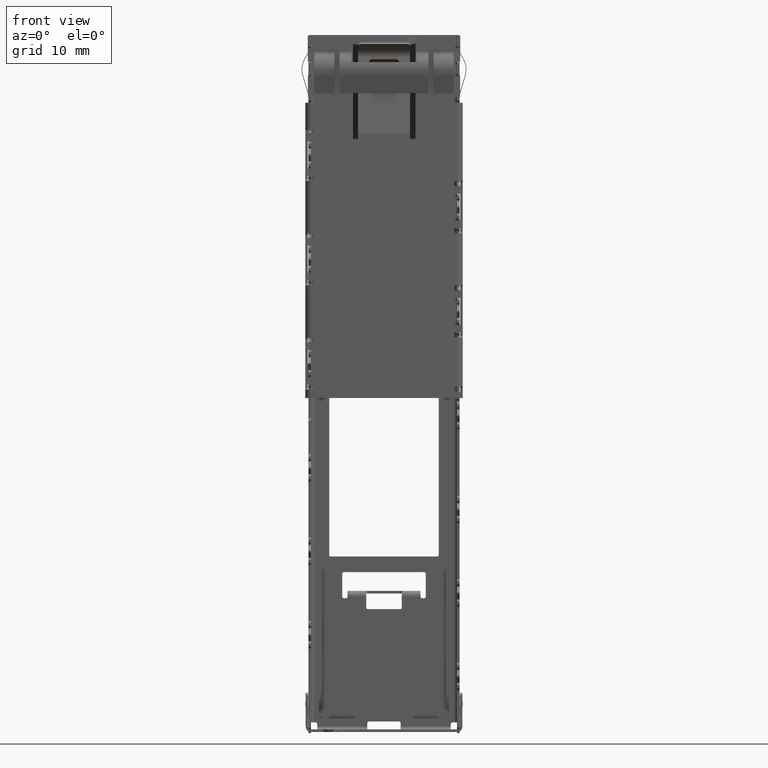
[diagram: clean part render]
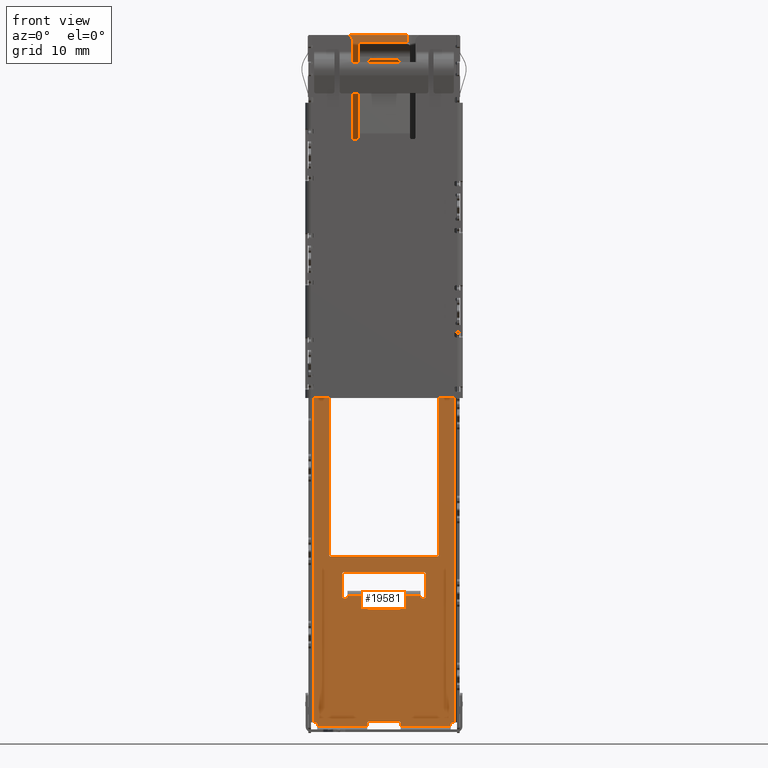
[diagram: same view with one face highlighted and labeled with its STEP entity id]
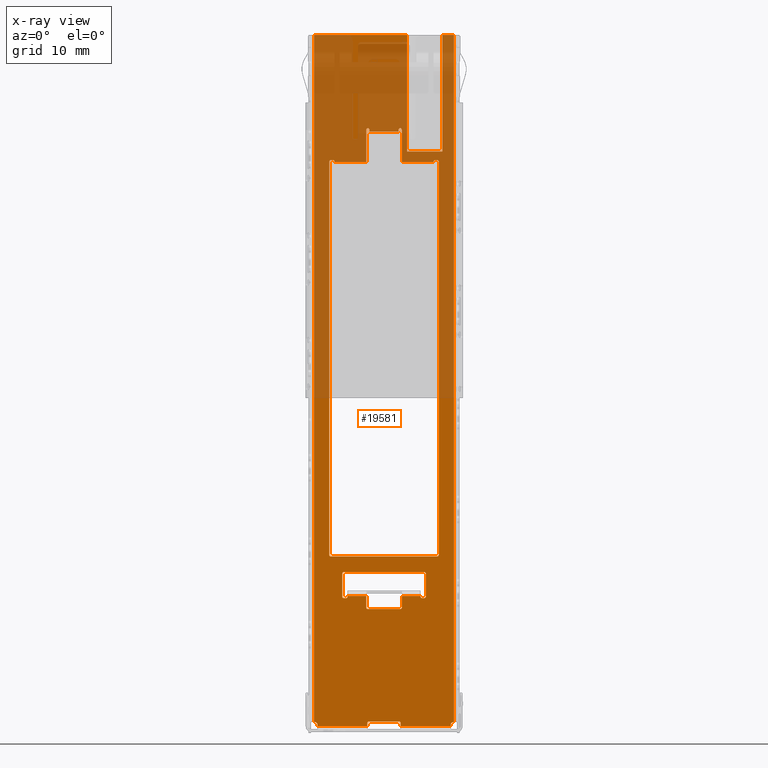
[diagram: x-ray of the same camera — body ghosted, the highlighted face saturated]
A machine part, front view. The second image highlights one B-rep face of the part: STEP entity #19581.
The next image is the same camera in x-ray: the body ghosted, the highlighted face saturated — about 41% of this face is hidden behind the body in this view.
In plain terms, the highlighted planar face has unit normal (0, -1, 0).
Its self-contained STEP definition (entity closure, byte-faithful):
#336 = EDGE_CURVE ( 'NONE', #14981, #46547, #28775, .T. ) ;
#384 = EDGE_CURVE ( 'NONE', #46547, #27460, #17562, .T. ) ;
#416 = CARTESIAN_POINT ( 'NONE',  ( -4.750000000000000000, 9.500000000000005329, -12.15000000000000036 ) ) ;
#475 = CARTESIAN_POINT ( 'NONE',  ( -6.400000000000000355, 9.500000000000008882, -66.10000000000000853 ) ) ;
#497 = ORIENTED_EDGE ( 'NONE', *, *, #40577, .T. ) ;
#895 = VECTOR ( 'NONE', #41113, 1000.000000000000000 ) ;
#902 = CARTESIAN_POINT ( 'NONE',  ( -4.899999999999999467, 9.500000000000005329, -12.00000000000000000 ) ) ;
#921 = LINE ( 'NONE', #48981, #28776 ) ;
#989 = CIRCLE ( 'NONE', #3352, 0.1499999999999973577 ) ;
#1230 = CARTESIAN_POINT ( 'NONE',  ( -1.699999999999994404, 9.500000000000005329, -55.05000000000003979 ) ) ;
#1267 = LINE ( 'NONE', #40125, #20743 ) ;
#1474 = ORIENTED_EDGE ( 'NONE', *, *, #33695, .T. ) ;
#1658 = DIRECTION ( 'NONE',  ( -1.000000000000000000, 0.0000000000000000000, 0.0000000000000000000 ) ) ;
#1727 = VECTOR ( 'NONE', #14269, 1000.000000000000000 ) ;
#1820 = CARTESIAN_POINT ( 'NONE',  ( -6.600000000000000533, 9.500000000000008882, -65.90000000000000568 ) ) ;
#1907 = ORIENTED_EDGE ( 'NONE', *, *, #39344, .T. ) ;
#1938 = CARTESIAN_POINT ( 'NONE',  ( -1.549999999999994493, 9.500000000000005329, -55.05000000000003979 ) ) ;
#2079 = AXIS2_PLACEMENT_3D ( 'NONE', #53365, #8422, #57669 ) ;
#2424 = DIRECTION ( 'NONE',  ( -0.0000000000000000000, -0.0000000000000000000, -1.000000000000000000 ) ) ;
#2463 = VECTOR ( 'NONE', #2424, 1000.000000000000000 ) ;
#2467 = EDGE_LOOP ( 'NONE', ( #18668, #18213, #9279, #40420, #30209, #16827, #21923, #26300, #35266, #16669, #39941, #49877, #42574, #12863, #28711, #12586, #53115, #27200, #26242, #32184, #13392, #497 ) ) ;
#2488 = CARTESIAN_POINT ( 'NONE',  ( 4.750000000000004441, 9.500000000000001776, -12.20000000000000995 ) ) ;
#2579 = DIRECTION ( 'NONE',  ( -0.0000000000000000000, -0.0000000000000000000, -1.000000000000000000 ) ) ;
#2649 = EDGE_CURVE ( 'NONE', #29528, #29014, #37397, .T. ) ;
#2892 = DIRECTION ( 'NONE',  ( -0.0000000000000000000, 0.0000000000000000000, 1.000000000000000000 ) ) ;
#3352 = AXIS2_PLACEMENT_3D ( 'NONE', #8911, #40944, #53686 ) ;
#3654 = CIRCLE ( 'NONE', #26468, 0.1499999999999973577 ) ;
#3735 = DIRECTION ( 'NONE',  ( 0.0000000000000000000, 0.0000000000000000000, -1.000000000000000000 ) ) ;
#3953 = VERTEX_POINT ( 'NONE', #12723 ) ;
#4001 = ORIENTED_EDGE ( 'NONE', *, *, #27285, .T. ) ;
#4174 = ORIENTED_EDGE ( 'NONE', *, *, #25448, .F. ) ;
#4273 = DIRECTION ( 'NONE',  ( -0.0000000000000000000, 1.000000000000000000, -0.0000000000000000000 ) ) ;
#4772 = CARTESIAN_POINT ( 'NONE',  ( 6.699999999999998401, 9.500000000000005329, 0.0000000000000000000 ) ) ;
#4861 = CARTESIAN_POINT ( 'NONE',  ( -4.000000000000000000, 9.500000000000005329, -54.00000000000000711 ) ) ;
#4947 = DIRECTION ( 'NONE',  ( -1.000000000000000000, -0.0000000000000000000, -0.0000000000000000000 ) ) ;
#4984 = AXIS2_PLACEMENT_3D ( 'NONE', #30666, #48077, #3735 ) ;
#5081 = LINE ( 'NONE', #46187, #895 ) ;
#5142 = ORIENTED_EDGE ( 'NONE', *, *, #6244, .T. ) ;
#5146 = EDGE_CURVE ( 'NONE', #50620, #54315, #5081, .T. ) ;
#5234 = CIRCLE ( 'NONE', #38874, 0.1500000000000008271 ) ;
#5256 = DIRECTION ( 'NONE',  ( 0.0000000000000000000, 0.0000000000000000000, -1.000000000000000000 ) ) ;
#5293 = VECTOR ( 'NONE', #8006, 1000.000000000000000 ) ;
#5379 = DIRECTION ( 'NONE',  ( -1.000000000000000000, -0.0000000000000000000, -0.0000000000000000000 ) ) ;
#5460 = VECTOR ( 'NONE', #22650, 1000.000000000000000 ) ;
#5900 = DIRECTION ( 'NONE',  ( -0.0000000000000000000, -0.0000000000000000000, -1.000000000000000000 ) ) ;
#5947 = VERTEX_POINT ( 'NONE', #12861 ) ;
#5977 = DIRECTION ( 'NONE',  ( 1.000000000000000000, 0.0000000000000000000, 0.0000000000000000000 ) ) ;
#6072 = LINE ( 'NONE', #46146, #40327 ) ;
#6116 = EDGE_CURVE ( 'NONE', #53242, #3953, #50347, .T. ) ;
#6244 = EDGE_CURVE ( 'NONE', #31123, #28936, #26584, .T. ) ;
#6270 = CARTESIAN_POINT ( 'NONE',  ( -5.100000000000000533, 9.500000000000005329, -49.85000000000000853 ) ) ;
#6296 = LINE ( 'NONE', #37719, #52422 ) ;
#6498 = DIRECTION ( 'NONE',  ( 0.0000000000000000000, 0.0000000000000000000, -1.000000000000000000 ) ) ;
#6860 = EDGE_CURVE ( 'NONE', #35699, #41408, #9026, .T. ) ;
#6953 = EDGE_CURVE ( 'NONE', #56946, #27808, #35609, .T. ) ;
#7187 = LINE ( 'NONE', #7524, #28794 ) ;
#7524 = CARTESIAN_POINT ( 'NONE',  ( -1.700000000000000178, 9.500000000000005329, -8.949999999999992184 ) ) ;
#7575 = VECTOR ( 'NONE', #5977, 1000.000000000000000 ) ;
#7651 = VECTOR ( 'NONE', #53524, 1000.000000000000000 ) ;
#7765 = CARTESIAN_POINT ( 'NONE',  ( 1.700000000000005285, 9.500000000000005329, -54.90000000000004121 ) ) ;
#7788 = CIRCLE ( 'NONE', #47431, 0.1500000000000008271 ) ;
#7807 = ORIENTED_EDGE ( 'NONE', *, *, #13797, .T. ) ;
#7925 = EDGE_CURVE ( 'NONE', #36254, #12260, #37605, .T. ) ;
#8006 = DIRECTION ( 'NONE',  ( 1.239088197126289831E-16, 0.0000000000000000000, -1.000000000000000000 ) ) ;
#8037 = CIRCLE ( 'NONE', #8529, 0.1499999999999973577 ) ;
#8097 = VERTEX_POINT ( 'NONE', #1820 ) ;
#8228 = DIRECTION ( 'NONE',  ( 0.0000000000000000000, 0.0000000000000000000, -1.000000000000000000 ) ) ;
#8303 = CIRCLE ( 'NONE', #16307, 0.2000000000000057288 ) ;
#8330 = DIRECTION ( 'NONE',  ( 1.000000000000000000, 0.0000000000000000000, 0.0000000000000000000 ) ) ;
#8341 = VERTEX_POINT ( 'NONE', #39842 ) ;
#8346 = CIRCLE ( 'NONE', #18438, 0.1500000000000008271 ) ;
#8354 = ORIENTED_EDGE ( 'NONE', *, *, #20650, .F. ) ;
#8422 = DIRECTION ( 'NONE',  ( -0.0000000000000000000, 1.000000000000000000, -0.0000000000000000000 ) ) ;
#8529 = AXIS2_PLACEMENT_3D ( 'NONE', #49766, #45089, #5256 ) ;
#8911 = CARTESIAN_POINT ( 'NONE',  ( -3.850000000000000089, 9.500000000000005329, -51.64999999999999858 ) ) ;
#9026 = LINE ( 'NONE', #22199, #7651 ) ;
#9150 = VERTEX_POINT ( 'NONE', #54825 ) ;
#9251 = ORIENTED_EDGE ( 'NONE', *, *, #30560, .T. ) ;
#9261 = CARTESIAN_POINT ( 'NONE',  ( 5.250000000000004441, 9.500000000000005329, -12.15000000000000036 ) ) ;
#9262 = DIRECTION ( 'NONE',  ( 0.0000000000000000000, 0.0000000000000000000, -1.000000000000000000 ) ) ;
#9279 = ORIENTED_EDGE ( 'NONE', *, *, #29791, .F. ) ;
#9532 = CIRCLE ( 'NONE', #50320, 0.2000000000000057288 ) ;
#9764 = ORIENTED_EDGE ( 'NONE', *, *, #36891, .T. ) ;
#9906 = CARTESIAN_POINT ( 'NONE',  ( -3.500000000000000000, 9.500000000000005329, -53.85000000000000853 ) ) ;
#10020 = CIRCLE ( 'NONE', #37768, 0.1499999999999973577 ) ;
#10038 = DIRECTION ( 'NONE',  ( 1.000000000000000000, 0.0000000000000000000, 0.0000000000000000000 ) ) ;
#10354 = DIRECTION ( 'NONE',  ( 0.0000000000000000000, 0.0000000000000000000, 1.000000000000000000 ) ) ;
#10416 = CARTESIAN_POINT ( 'NONE',  ( 1.450000000000000178, 9.500000000000008882, -65.82500000000001705 ) ) ;
#10487 = VERTEX_POINT ( 'NONE', #35536 ) ;
#10723 = DIRECTION ( 'NONE',  ( 0.0000000000000000000, 0.0000000000000000000, -1.000000000000000000 ) ) ;
#11069 = ORIENTED_EDGE ( 'NONE', *, *, #57177, .T. ) ;
#11134 = VECTOR ( 'NONE', #45071, 1000.000000000000000 ) ;
#11150 = CARTESIAN_POINT ( 'NONE',  ( 4.000000000000000000, 9.500000000000005329, -51.64999999999999858 ) ) ;
#11182 = VERTEX_POINT ( 'NONE', #13569 ) ;
#11560 = ORIENTED_EDGE ( 'NONE', *, *, #14171, .T. ) ;
#11713 = DIRECTION ( 'NONE',  ( -1.000000000000000000, -0.0000000000000000000, -0.0000000000000000000 ) ) ;
#11858 = CARTESIAN_POINT ( 'NONE',  ( 1.599999999999999867, 9.500000000000005329, -65.97500000000002274 ) ) ;
#11873 = ORIENTED_EDGE ( 'NONE', *, *, #6953, .T. ) ;
#11943 = VERTEX_POINT ( 'NONE', #38027 ) ;
#12063 = LINE ( 'NONE', #16293, #49082 ) ;
#12260 = VERTEX_POINT ( 'NONE', #13949 ) ;
#12291 = VERTEX_POINT ( 'NONE', #22930 ) ;
#12586 = ORIENTED_EDGE ( 'NONE', *, *, #34452, .F. ) ;
#12620 = CARTESIAN_POINT ( 'NONE',  ( 3.500000000000000000, 9.500000000000010658, -53.80000000000000426 ) ) ;
#12723 = CARTESIAN_POINT ( 'NONE',  ( 5.250000000000000000, 9.500000000000005329, -49.85000000000000853 ) ) ;
#12861 = CARTESIAN_POINT ( 'NONE',  ( -5.250000000000000000, 9.500000000000005329, -49.85000000000000853 ) ) ;
#12863 = ORIENTED_EDGE ( 'NONE', *, *, #56772, .T. ) ;
#12902 = EDGE_CURVE ( 'NONE', #37028, #34404, #44764, .T. ) ;
#13212 = DIRECTION ( 'NONE',  ( -0.0000000000000000000, 1.000000000000000000, -0.0000000000000000000 ) ) ;
#13288 = CARTESIAN_POINT ( 'NONE',  ( 4.900000000000000355, 9.500000000000005329, -12.00000000000000000 ) ) ;
#13361 = CARTESIAN_POINT ( 'NONE',  ( 3.849999999999999201, 9.500000000000005329, -54.00000000000000711 ) ) ;
#13392 = ORIENTED_EDGE ( 'NONE', *, *, #44830, .F. ) ;
#13501 = VERTEX_POINT ( 'NONE', #12620 ) ;
#13559 = LINE ( 'NONE', #39603, #35926 ) ;
#13569 = CARTESIAN_POINT ( 'NONE',  ( 5.100000000000004974, 9.500000000000005329, -12.00000000000000000 ) ) ;
#13729 = VERTEX_POINT ( 'NONE', #902 ) ;
#13797 = EDGE_CURVE ( 'NONE', #13501, #48173, #57244, .T. ) ;
#13804 = CARTESIAN_POINT ( 'NONE',  ( 1.599999999999999867, 9.500000000000005329, -65.90000000000000568 ) ) ;
#13949 = CARTESIAN_POINT ( 'NONE',  ( -1.399999999999999911, 9.500000000000005329, -9.250000000000000000 ) ) ;
#14137 = LINE ( 'NONE', #16388, #55346 ) ;
#14171 = EDGE_CURVE ( 'NONE', #49024, #41991, #40425, .T. ) ;
#14225 = DIRECTION ( 'NONE',  ( -1.000000000000000000, -0.0000000000000000000, -0.0000000000000000000 ) ) ;
#14259 = LINE ( 'NONE', #50596, #33836 ) ;
#14269 = DIRECTION ( 'NONE',  ( 1.000000000000000000, 0.0000000000000000000, 0.0000000000000000000 ) ) ;
#14622 = LINE ( 'NONE', #43167, #39066 ) ;
#14776 = EDGE_CURVE ( 'NONE', #50865, #24422, #16580, .T. ) ;
#14981 = VERTEX_POINT ( 'NONE', #42222 ) ;
#14997 = CARTESIAN_POINT ( 'NONE',  ( 3.649999999999999911, 9.500000000000005329, -53.85000000000000853 ) ) ;
#15083 = CARTESIAN_POINT ( 'NONE',  ( 5.100000000000000533, 9.500000000000005329, -50.00000000000000000 ) ) ;
#15250 = EDGE_CURVE ( 'NONE', #13501, #9150, #18607, .T. ) ;
#15262 = PLANE ( 'NONE',  #54726 ) ;
#15321 = CARTESIAN_POINT ( 'NONE',  ( 5.580000000000000959, 9.500000000000005329, -65.90000000000000568 ) ) ;
#15367 = EDGE_CURVE ( 'NONE', #38338, #56946, #8037, .T. ) ;
#15412 = CARTESIAN_POINT ( 'NONE',  ( 5.250000000000000000, 9.500000000000005329, -49.85000000000000853 ) ) ;
#15871 = DIRECTION ( 'NONE',  ( -0.0000000000000000000, 1.000000000000000000, -0.0000000000000000000 ) ) ;
#15963 = DIRECTION ( 'NONE',  ( 0.0000000000000000000, 0.0000000000000000000, -1.000000000000000000 ) ) ;
#15974 = AXIS2_PLACEMENT_3D ( 'NONE', #47511, #16816, #8228 ) ;
#16205 = CARTESIAN_POINT ( 'NONE',  ( 1.700000000000007061, 9.500000000000007105, -53.80000000000000426 ) ) ;
#16272 = CARTESIAN_POINT ( 'NONE',  ( -3.850000000000000089, 9.500000000000005329, -54.00000000000000711 ) ) ;
#16293 = CARTESIAN_POINT ( 'NONE',  ( 4.750000000000000000, 9.500000000000005329, -12.20000000000000284 ) ) ;
#16307 = AXIS2_PLACEMENT_3D ( 'NONE', #20142, #15871, #6498 ) ;
#16388 = CARTESIAN_POINT ( 'NONE',  ( 4.750000000000000000, 9.500000000000005329, -12.20000000000000284 ) ) ;
#16532 = CARTESIAN_POINT ( 'NONE',  ( -1.699999999999994404, 9.500000000000005329, -54.90000000000004121 ) ) ;
#16580 = LINE ( 'NONE', #26997, #33414 ) ;
#16669 = ORIENTED_EDGE ( 'NONE', *, *, #19561, .T. ) ;
#16816 = DIRECTION ( 'NONE',  ( -0.0000000000000000000, 1.000000000000000000, -0.0000000000000000000 ) ) ;
#16827 = ORIENTED_EDGE ( 'NONE', *, *, #23966, .T. ) ;
#17168 = CARTESIAN_POINT ( 'NONE',  ( 3.500000000000000000, 9.500000000000005329, -53.80000000000000426 ) ) ;
#17210 = CARTESIAN_POINT ( 'NONE',  ( -1.399999999999999911, 9.500000000000005329, -9.250000000000000000 ) ) ;
#17243 = CIRCLE ( 'NONE', #4984, 0.1499999999999973577 ) ;
#17398 = ORIENTED_EDGE ( 'NONE', *, *, #34880, .T. ) ;
#17562 = LINE ( 'NONE', #13804, #53992 ) ;
#17630 = DIRECTION ( 'NONE',  ( -1.000000000000000000, -0.0000000000000000000, -0.0000000000000000000 ) ) ;
#17722 = DIRECTION ( 'NONE',  ( 0.0000000000000000000, 0.0000000000000000000, -1.000000000000000000 ) ) ;
#17744 = VERTEX_POINT ( 'NONE', #26238 ) ;
#17754 = VERTEX_POINT ( 'NONE', #57125 ) ;
#17818 = DIRECTION ( 'NONE',  ( 1.000000000000000000, 0.0000000000000000000, 0.0000000000000000000 ) ) ;
#17839 = DIRECTION ( 'NONE',  ( 0.0000000000000000000, 0.0000000000000000000, -1.000000000000000000 ) ) ;
#17977 = CIRCLE ( 'NONE', #19389, 0.1500000000000008271 ) ;
#18025 = EDGE_CURVE ( 'NONE', #27808, #48135, #57659, .T. ) ;
#18206 = DIRECTION ( 'NONE',  ( -9.202777060884917795E-17, 0.0000000000000000000, 1.000000000000000000 ) ) ;
#18213 = ORIENTED_EDGE ( 'NONE', *, *, #19625, .F. ) ;
#18438 = AXIS2_PLACEMENT_3D ( 'NONE', #57807, #31607, #49168 ) ;
#18439 = CARTESIAN_POINT ( 'NONE',  ( 4.899999999999999467, 9.500000000000005329, -12.15000000000000036 ) ) ;
#18589 = EDGE_LOOP ( 'NONE', ( #37215, #17398, #24017, #9764, #57241, #31787, #9251, #21652, #52685, #57898, #5142, #29562, #26879, #4001, #50755, #49563, #8354, #47316, #1474, #20778 ) ) ;
#18607 = LINE ( 'NONE', #17168, #35376 ) ;
#18668 = ORIENTED_EDGE ( 'NONE', *, *, #23520, .F. ) ;
#18718 = VERTEX_POINT ( 'NONE', #16532 ) ;
#18883 = CARTESIAN_POINT ( 'NONE',  ( -4.750000000000000000, 9.500000000000005329, -12.20000000000000284 ) ) ;
#19262 = CARTESIAN_POINT ( 'NONE',  ( 2.220000000000009077, 9.500000000000005329, -11.18356805183874059 ) ) ;
#19389 = AXIS2_PLACEMENT_3D ( 'NONE', #43539, #56474, #25205 ) ;
#19423 = LINE ( 'NONE', #32714, #7575 ) ;
#19468 = VECTOR ( 'NONE', #5379, 1000.000000000000000 ) ;
#19561 = EDGE_CURVE ( 'NONE', #54315, #5947, #54663, .T. ) ;
#19581 = ADVANCED_FACE ( 'NONE', ( #26029, #44852, #35094 ), #15262, .T. ) ;
#19625 = EDGE_CURVE ( 'NONE', #22548, #51913, #14137, .T. ) ;
#20131 = ORIENTED_EDGE ( 'NONE', *, *, #15250, .F. ) ;
#20142 = CARTESIAN_POINT ( 'NONE',  ( 6.599999999999999645, 9.500000000000005329, -66.10000000000000853 ) ) ;
#20212 = CARTESIAN_POINT ( 'NONE',  ( 3.849999999999999201, 9.500000000000005329, -53.85000000000000853 ) ) ;
#20646 = LINE ( 'NONE', #29995, #35364 ) ;
#20650 = EDGE_CURVE ( 'NONE', #24843, #14981, #37762, .T. ) ;
#20743 = VECTOR ( 'NONE', #17818, 1000.000000000000000 ) ;
#20778 = ORIENTED_EDGE ( 'NONE', *, *, #6860, .T. ) ;
#20801 = DIRECTION ( 'NONE',  ( 0.0000000000000000000, 0.0000000000000000000, -1.000000000000000000 ) ) ;
#20851 = DIRECTION ( 'NONE',  ( -1.000000000000000000, 0.0000000000000000000, 0.0000000000000000000 ) ) ;
#20935 = CARTESIAN_POINT ( 'NONE',  ( 1.700000000000000400, 9.500000000000005329, -12.20000000000000284 ) ) ;
#21152 = DIRECTION ( 'NONE',  ( 1.000000000000000000, 0.0000000000000000000, 0.0000000000000000000 ) ) ;
#21436 = EDGE_CURVE ( 'NONE', #22560, #18718, #52399, .T. ) ;
#21542 = CARTESIAN_POINT ( 'NONE',  ( -5.100000000000004974, 9.500000000000005329, -12.00000000000000000 ) ) ;
#21610 = CARTESIAN_POINT ( 'NONE',  ( 1.699999999999999067, 9.500000000000008882, -9.099999999999997868 ) ) ;
#21652 = ORIENTED_EDGE ( 'NONE', *, *, #43675, .T. ) ;
#21756 = VECTOR ( 'NONE', #24477, 1000.000000000000000 ) ;
#21838 = ORIENTED_EDGE ( 'NONE', *, *, #54923, .T. ) ;
#21845 = EDGE_CURVE ( 'NONE', #42382, #49024, #22191, .T. ) ;
#21923 = ORIENTED_EDGE ( 'NONE', *, *, #6116, .T. ) ;
#22191 = CIRCLE ( 'NONE', #2079, 0.1499999999999973577 ) ;
#22199 = CARTESIAN_POINT ( 'NONE',  ( 6.699999999999998401, 9.500000000000005329, -65.90000000000000568 ) ) ;
#22262 = CARTESIAN_POINT ( 'NONE',  ( 4.000000000000000000, 9.500000000000005329, -54.00000000000000711 ) ) ;
#22536 = CARTESIAN_POINT ( 'NONE',  ( -4.750000000000000000, 9.500000000000005329, -12.20000000000000284 ) ) ;
#22548 = VERTEX_POINT ( 'NONE', #2488 ) ;
#22560 = VERTEX_POINT ( 'NONE', #1938 ) ;
#22561 = CARTESIAN_POINT ( 'NONE',  ( 3.849999999999999201, 9.500000000000005329, -51.50000000000000711 ) ) ;
#22650 = DIRECTION ( 'NONE',  ( -1.734723475976807094E-16, -0.0000000000000000000, 1.000000000000000000 ) ) ;
#22751 = LINE ( 'NONE', #39389, #43723 ) ;
#22791 = CARTESIAN_POINT ( 'NONE',  ( -4.899999999999999467, 9.500000000000005329, -12.15000000000000036 ) ) ;
#22910 = VERTEX_POINT ( 'NONE', #13361 ) ;
#22916 = VECTOR ( 'NONE', #44567, 1000.000000000000000 ) ;
#22930 = CARTESIAN_POINT ( 'NONE',  ( 5.580000000000000959, 9.500000000000005329, 0.0000000000000000000 ) ) ;
#23172 = EDGE_CURVE ( 'NONE', #24843, #17744, #8303, .T. ) ;
#23284 = AXIS2_PLACEMENT_3D ( 'NONE', #35387, #39723, #40303 ) ;
#23355 = EDGE_CURVE ( 'NONE', #3953, #50620, #56520, .T. ) ;
#23520 = EDGE_CURVE ( 'NONE', #51913, #41162, #27138, .T. ) ;
#23603 = DIRECTION ( 'NONE',  ( -0.0000000000000000000, 1.000000000000000000, -0.0000000000000000000 ) ) ;
#23702 = CARTESIAN_POINT ( 'NONE',  ( -3.850000000000000089, 9.500000000000005329, -51.50000000000000711 ) ) ;
#23879 = LINE ( 'NONE', #15321, #21756 ) ;
#23966 = EDGE_CURVE ( 'NONE', #11182, #53242, #17977, .T. ) ;
#24017 = ORIENTED_EDGE ( 'NONE', *, *, #14776, .T. ) ;
#24389 = LINE ( 'NONE', #38241, #45343 ) ;
#24410 = CARTESIAN_POINT ( 'NONE',  ( 1.550000000000005373, 9.500000000000005329, -54.90000000000004121 ) ) ;
#24422 = VERTEX_POINT ( 'NONE', #19262 ) ;
#24477 = DIRECTION ( 'NONE',  ( -0.0000000000000000000, -0.0000000000000000000, -1.000000000000000000 ) ) ;
#24604 = VECTOR ( 'NONE', #35274, 1000.000000000000000 ) ;
#24657 = EDGE_CURVE ( 'NONE', #29014, #13729, #20646, .T. ) ;
#24843 = VERTEX_POINT ( 'NONE', #41289 ) ;
#24909 = VECTOR ( 'NONE', #42920, 1000.000000000000000 ) ;
#24965 = VECTOR ( 'NONE', #43310, 1000.000000000000000 ) ;
#25011 = DIRECTION ( 'NONE',  ( -0.0000000000000000000, 1.000000000000000000, -0.0000000000000000000 ) ) ;
#25038 = VERTEX_POINT ( 'NONE', #10416 ) ;
#25205 = DIRECTION ( 'NONE',  ( 0.0000000000000000000, 0.0000000000000000000, -1.000000000000000000 ) ) ;
#25448 = EDGE_CURVE ( 'NONE', #22560, #34404, #27555, .T. ) ;
#25630 = DIRECTION ( 'NONE',  ( -0.0000000000000000000, -0.0000000000000000000, -1.000000000000000000 ) ) ;
#26029 = FACE_OUTER_BOUND ( 'NONE', #18589, .T. ) ;
#26238 = CARTESIAN_POINT ( 'NONE',  ( 6.599999999999999645, 9.500000000000008882, -65.90000000000000568 ) ) ;
#26242 = ORIENTED_EDGE ( 'NONE', *, *, #7925, .T. ) ;
#26300 = ORIENTED_EDGE ( 'NONE', *, *, #23355, .T. ) ;
#26336 = VERTEX_POINT ( 'NONE', #55502 ) ;
#26468 = AXIS2_PLACEMENT_3D ( 'NONE', #14997, #46451, #20801 ) ;
#26584 = LINE ( 'NONE', #38610, #34979 ) ;
#26879 = ORIENTED_EDGE ( 'NONE', *, *, #48274, .F. ) ;
#26997 = CARTESIAN_POINT ( 'NONE',  ( -6.699999999999998401, 9.500000000000005329, -11.18356805183873881 ) ) ;
#27090 = VERTEX_POINT ( 'NONE', #416 ) ;
#27138 = LINE ( 'NONE', #50015, #5460 ) ;
#27200 = ORIENTED_EDGE ( 'NONE', *, *, #30028, .T. ) ;
#27285 = EDGE_CURVE ( 'NONE', #25038, #27460, #46340, .T. ) ;
#27460 = VERTEX_POINT ( 'NONE', #11858 ) ;
#27555 = LINE ( 'NONE', #1230, #1727 ) ;
#27701 = CARTESIAN_POINT ( 'NONE',  ( -1.549999999999994493, 9.500000000000005329, -54.90000000000004121 ) ) ;
#27796 = CARTESIAN_POINT ( 'NONE',  ( 1.399999999999998579, 9.500000000000003553, -9.250000000000000000 ) ) ;
#27808 = VERTEX_POINT ( 'NONE', #16272 ) ;
#27946 = VECTOR ( 'NONE', #54231, 1000.000000000000000 ) ;
#28019 = CARTESIAN_POINT ( 'NONE',  ( -3.649999999999999911, 9.500000000000005329, -54.00000000000000711 ) ) ;
#28511 = VECTOR ( 'NONE', #10038, 1000.000000000000000 ) ;
#28648 = EDGE_CURVE ( 'NONE', #31123, #55503, #42693, .T. ) ;
#28652 = DIRECTION ( 'NONE',  ( 0.0000000000000000000, 0.0000000000000000000, -1.000000000000000000 ) ) ;
#28711 = ORIENTED_EDGE ( 'NONE', *, *, #47333, .T. ) ;
#28775 = LINE ( 'NONE', #52917, #24604 ) ;
#28776 = VECTOR ( 'NONE', #35890, 1000.000000000000000 ) ;
#28794 = VECTOR ( 'NONE', #57904, 1000.000000000000000 ) ;
#28936 = VERTEX_POINT ( 'NONE', #48185 ) ;
#29014 = VERTEX_POINT ( 'NONE', #21542 ) ;
#29139 = CARTESIAN_POINT ( 'NONE',  ( 6.400000000000000355, 9.500000000000005329, -66.27500000000003411 ) ) ;
#29143 = DIRECTION ( 'NONE',  ( -1.239088197126289831E-16, -0.0000000000000000000, 1.000000000000000000 ) ) ;
#29237 = CARTESIAN_POINT ( 'NONE',  ( 1.450000000000000178, 9.500000000000005329, -65.97500000000002274 ) ) ;
#29386 = VERTEX_POINT ( 'NONE', #47725 ) ;
#29523 = LINE ( 'NONE', #44797, #52598 ) ;
#29528 = VERTEX_POINT ( 'NONE', #49828 ) ;
#29551 = VERTEX_POINT ( 'NONE', #475 ) ;
#29562 = ORIENTED_EDGE ( 'NONE', *, *, #52450, .T. ) ;
#29766 = EDGE_CURVE ( 'NONE', #17754, #53833, #6296, .T. ) ;
#29791 = EDGE_CURVE ( 'NONE', #32040, #22548, #14622, .T. ) ;
#29995 = CARTESIAN_POINT ( 'NONE',  ( -5.100000000000004974, 9.500000000000005329, -12.00000000000000000 ) ) ;
#30028 = EDGE_CURVE ( 'NONE', #54391, #36254, #8346, .T. ) ;
#30209 = ORIENTED_EDGE ( 'NONE', *, *, #49928, .T. ) ;
#30259 = CARTESIAN_POINT ( 'NONE',  ( -1.699999999999994627, 9.500000000000005329, -53.30000000000003268 ) ) ;
#30277 = EDGE_CURVE ( 'NONE', #12291, #41408, #24389, .T. ) ;
#30560 = EDGE_CURVE ( 'NONE', #17754, #8097, #19423, .T. ) ;
#30614 = EDGE_CURVE ( 'NONE', #53833, #34168, #46717, .T. ) ;
#30666 = CARTESIAN_POINT ( 'NONE',  ( -1.450000000000000178, 9.500000000000005329, -65.97500000000002274 ) ) ;
#31123 = VERTEX_POINT ( 'NONE', #50236 ) ;
#31315 = EDGE_CURVE ( 'NONE', #29551, #55503, #6072, .T. ) ;
#31461 = LINE ( 'NONE', #22536, #27946 ) ;
#31607 = DIRECTION ( 'NONE',  ( -0.0000000000000000000, 1.000000000000000000, -0.0000000000000000000 ) ) ;
#31787 = ORIENTED_EDGE ( 'NONE', *, *, #29766, .F. ) ;
#31792 = LINE ( 'NONE', #33056, #2463 ) ;
#31850 = LINE ( 'NONE', #30259, #5293 ) ;
#32040 = VERTEX_POINT ( 'NONE', #55833 ) ;
#32184 = ORIENTED_EDGE ( 'NONE', *, *, #44143, .F. ) ;
#32424 = VERTEX_POINT ( 'NONE', #23702 ) ;
#32714 = CARTESIAN_POINT ( 'NONE',  ( -6.699999999999998401, 9.500000000000005329, -65.90000000000000568 ) ) ;
#32773 = ORIENTED_EDGE ( 'NONE', *, *, #21436, .T. ) ;
#32949 = DIRECTION ( 'NONE',  ( 1.000000000000000000, 0.0000000000000000000, 0.0000000000000000000 ) ) ;
#33005 = EDGE_CURVE ( 'NONE', #11943, #18718, #31850, .T. ) ;
#33056 = CARTESIAN_POINT ( 'NONE',  ( 1.399999999999999911, 9.500000000000005329, -9.250000000000000000 ) ) ;
#33169 = DIRECTION ( 'NONE',  ( -9.202777060884917795E-17, 0.0000000000000000000, -1.000000000000000000 ) ) ;
#33414 = VECTOR ( 'NONE', #4947, 1000.000000000000000 ) ;
#33564 = LINE ( 'NONE', #55170, #44018 ) ;
#33695 = EDGE_CURVE ( 'NONE', #17744, #35699, #13559, .T. ) ;
#33834 = DIRECTION ( 'NONE',  ( -0.0000000000000000000, -0.0000000000000000000, -1.000000000000000000 ) ) ;
#33836 = VECTOR ( 'NONE', #10354, 1000.000000000000000 ) ;
#34040 = EDGE_CURVE ( 'NONE', #50940, #32424, #989, .T. ) ;
#34168 = VERTEX_POINT ( 'NONE', #46417 ) ;
#34268 = VECTOR ( 'NONE', #20851, 1000.000000000000000 ) ;
#34324 = CARTESIAN_POINT ( 'NONE',  ( -3.500000000000000000, 9.500000000000005329, -53.80000000000000426 ) ) ;
#34404 = VERTEX_POINT ( 'NONE', #47565 ) ;
#34445 = EDGE_CURVE ( 'NONE', #54391, #52232, #7187, .T. ) ;
#34452 = EDGE_CURVE ( 'NONE', #52232, #39874, #12063, .T. ) ;
#34602 = EDGE_LOOP ( 'NONE', ( #36753, #21838, #40978, #57288, #11873, #56350, #1907, #45709, #53483, #48382, #11560, #11069, #53048, #50071, #20131, #7807, #54836, #36501, #4174, #32773 ) ) ;
#34648 = EDGE_CURVE ( 'NONE', #22910, #10487, #29523, .T. ) ;
#34865 = EDGE_CURVE ( 'NONE', #37028, #48173, #36495, .T. ) ;
#34880 = EDGE_CURVE ( 'NONE', #12291, #50865, #23879, .T. ) ;
#34979 = VECTOR ( 'NONE', #2892, 1000.000000000000000 ) ;
#35094 = FACE_BOUND ( 'NONE', #34602, .T. ) ;
#35266 = ORIENTED_EDGE ( 'NONE', *, *, #5146, .T. ) ;
#35274 = DIRECTION ( 'NONE',  ( -1.000000000000000000, -0.0000000000000000000, -0.0000000000000000000 ) ) ;
#35303 = LINE ( 'NONE', #44979, #41608 ) ;
#35364 = VECTOR ( 'NONE', #21152, 1000.000000000000000 ) ;
#35376 = VECTOR ( 'NONE', #17722, 1000.000000000000000 ) ;
#35387 = CARTESIAN_POINT ( 'NONE',  ( 1.550000000000000044, 9.500000000000005329, -9.099999999999994316 ) ) ;
#35536 = CARTESIAN_POINT ( 'NONE',  ( 3.650000000000000355, 9.500000000000005329, -54.00000000000000711 ) ) ;
#35577 = AXIS2_PLACEMENT_3D ( 'NONE', #29237, #55432, #15963 ) ;
#35609 = LINE ( 'NONE', #4861, #11134 ) ;
#35699 = VERTEX_POINT ( 'NONE', #36839 ) ;
#35757 = VECTOR ( 'NONE', #29143, 1000.000000000000000 ) ;
#35890 = DIRECTION ( 'NONE',  ( -1.000000000000000000, -0.0000000000000000000, -0.0000000000000000000 ) ) ;
#35926 = VECTOR ( 'NONE', #8330, 1000.000000000000000 ) ;
#36190 = VECTOR ( 'NONE', #25630, 1000.000000000000000 ) ;
#36254 = VERTEX_POINT ( 'NONE', #40338 ) ;
#36430 = CARTESIAN_POINT ( 'NONE',  ( -6.699999999999998401, 9.500000000000008882, 0.0000000000000000000 ) ) ;
#36495 = LINE ( 'NONE', #51067, #35757 ) ;
#36501 = ORIENTED_EDGE ( 'NONE', *, *, #12902, .T. ) ;
#36679 = CARTESIAN_POINT ( 'NONE',  ( 2.220000000000009077, 9.500000000000005329, -65.90000000000000568 ) ) ;
#36753 = ORIENTED_EDGE ( 'NONE', *, *, #33005, .F. ) ;
#36839 = CARTESIAN_POINT ( 'NONE',  ( 6.699999999999998401, 9.500000000000003553, -65.90000000000000568 ) ) ;
#36850 = AXIS2_PLACEMENT_3D ( 'NONE', #27701, #50374, #54876 ) ;
#36891 = EDGE_CURVE ( 'NONE', #24422, #34168, #42479, .T. ) ;
#37028 = VERTEX_POINT ( 'NONE', #7765 ) ;
#37215 = ORIENTED_EDGE ( 'NONE', *, *, #30277, .F. ) ;
#37397 = CIRCLE ( 'NONE', #37814, 0.1500000000000008271 ) ;
#37516 = DIRECTION ( 'NONE',  ( -0.0000000000000000000, 1.000000000000000000, -0.0000000000000000000 ) ) ;
#37525 = DIRECTION ( 'NONE',  ( -0.0000000000000000000, 1.000000000000000000, -0.0000000000000000000 ) ) ;
#37605 = LINE ( 'NONE', #17210, #36190 ) ;
#37719 = CARTESIAN_POINT ( 'NONE',  ( -6.699999999999998401, 9.500000000000000000, -65.90000000000000568 ) ) ;
#37762 = LINE ( 'NONE', #29139, #48949 ) ;
#37768 = AXIS2_PLACEMENT_3D ( 'NONE', #20212, #56002, #42332 ) ;
#37799 = DIRECTION ( 'NONE',  ( 1.000000000000000000, 0.0000000000000000000, 0.0000000000000000000 ) ) ;
#37814 = AXIS2_PLACEMENT_3D ( 'NONE', #49299, #48535, #17839 ) ;
#38027 = CARTESIAN_POINT ( 'NONE',  ( -1.699999999999994404, 9.500000000000008882, -53.80000000000000426 ) ) ;
#38241 = CARTESIAN_POINT ( 'NONE',  ( -6.699999999999998401, 9.500000000000005329, 0.0000000000000000000 ) ) ;
#38338 = VERTEX_POINT ( 'NONE', #9906 ) ;
#38610 = CARTESIAN_POINT ( 'NONE',  ( -1.599999999999999867, 9.500000000000005329, -65.90000000000000568 ) ) ;
#38642 = AXIS2_PLACEMENT_3D ( 'NONE', #6270, #37525, #10723 ) ;
#38874 = AXIS2_PLACEMENT_3D ( 'NONE', #22791, #4273, #40586 ) ;
#39066 = VECTOR ( 'NONE', #2579, 1000.000000000000000 ) ;
#39242 = CARTESIAN_POINT ( 'NONE',  ( -6.699999999999998401, 9.500000000000005329, -65.82500000000001705 ) ) ;
#39344 = EDGE_CURVE ( 'NONE', #48135, #50940, #14259, .T. ) ;
#39389 = CARTESIAN_POINT ( 'NONE',  ( 1.399999999999999911, 9.500000000000005329, -9.250000000000000000 ) ) ;
#39528 = AXIS2_PLACEMENT_3D ( 'NONE', #24410, #37516, #56240 ) ;
#39603 = CARTESIAN_POINT ( 'NONE',  ( -6.699999999999998401, 9.500000000000005329, -65.90000000000000568 ) ) ;
#39723 = DIRECTION ( 'NONE',  ( -0.0000000000000000000, 1.000000000000000000, -0.0000000000000000000 ) ) ;
#39842 = CARTESIAN_POINT ( 'NONE',  ( -3.500000000000003109, 9.500000000000007105, -53.80000000000000426 ) ) ;
#39845 = CARTESIAN_POINT ( 'NONE',  ( 5.580000000000001847, 9.500000000000005329, -11.18356805183874059 ) ) ;
#39874 = VERTEX_POINT ( 'NONE', #18883 ) ;
#39941 = ORIENTED_EDGE ( 'NONE', *, *, #44581, .T. ) ;
#40033 = CARTESIAN_POINT ( 'NONE',  ( -4.000000000000000000, 9.500000000000005329, -51.64999999999999858 ) ) ;
#40125 = CARTESIAN_POINT ( 'NONE',  ( -4.000000000000000000, 9.500000000000005329, -51.50000000000000711 ) ) ;
#40303 = DIRECTION ( 'NONE',  ( 0.0000000000000000000, 0.0000000000000000000, -1.000000000000000000 ) ) ;
#40327 = VECTOR ( 'NONE', #5900, 1000.000000000000000 ) ;
#40338 = CARTESIAN_POINT ( 'NONE',  ( -1.399999999999999911, 9.500000000000005329, -9.099999999999994316 ) ) ;
#40420 = ORIENTED_EDGE ( 'NONE', *, *, #55352, .T. ) ;
#40425 = LINE ( 'NONE', #22262, #22916 ) ;
#40577 = EDGE_CURVE ( 'NONE', #26336, #41162, #42750, .T. ) ;
#40586 = DIRECTION ( 'NONE',  ( 0.0000000000000000000, 0.0000000000000000000, -1.000000000000000000 ) ) ;
#40944 = DIRECTION ( 'NONE',  ( -0.0000000000000000000, 1.000000000000000000, -0.0000000000000000000 ) ) ;
#40978 = ORIENTED_EDGE ( 'NONE', *, *, #43973, .T. ) ;
#41113 = DIRECTION ( 'NONE',  ( -1.000000000000000000, 0.0000000000000000000, 0.0000000000000000000 ) ) ;
#41162 = VERTEX_POINT ( 'NONE', #21610 ) ;
#41289 = CARTESIAN_POINT ( 'NONE',  ( 6.400000000000000355, 9.500000000000008882, -66.10000000000000853 ) ) ;
#41408 = VERTEX_POINT ( 'NONE', #4772 ) ;
#41608 = VECTOR ( 'NONE', #18206, 1000.000000000000000 ) ;
#41991 = VERTEX_POINT ( 'NONE', #50789 ) ;
#42200 = CARTESIAN_POINT ( 'NONE',  ( 1.599999999999999867, 9.500000000000001776, -66.27500000000003411 ) ) ;
#42222 = CARTESIAN_POINT ( 'NONE',  ( 6.400000000000003020, 9.499999999999994671, -66.27500000000003411 ) ) ;
#42332 = DIRECTION ( 'NONE',  ( 0.0000000000000000000, 0.0000000000000000000, -1.000000000000000000 ) ) ;
#42382 = VERTEX_POINT ( 'NONE', #22561 ) ;
#42420 = DIRECTION ( 'NONE',  ( 0.0000000000000000000, 0.0000000000000000000, 1.000000000000000000 ) ) ;
#42479 = LINE ( 'NONE', #36679, #24965 ) ;
#42574 = ORIENTED_EDGE ( 'NONE', *, *, #24657, .T. ) ;
#42693 = LINE ( 'NONE', #54317, #56649 ) ;
#42750 = CIRCLE ( 'NONE', #23284, 0.1500000000000008271 ) ;
#42783 = DIRECTION ( 'NONE',  ( 0.0000000000000000000, 0.0000000000000000000, -1.000000000000000000 ) ) ;
#42920 = DIRECTION ( 'NONE',  ( 0.0000000000000000000, 0.0000000000000000000, -1.000000000000000000 ) ) ;
#43167 = CARTESIAN_POINT ( 'NONE',  ( 4.750000000000000000, 9.500000000000005329, -12.20000000000000284 ) ) ;
#43310 = DIRECTION ( 'NONE',  ( 0.0000000000000000000, 0.0000000000000000000, 1.000000000000000000 ) ) ;
#43539 = CARTESIAN_POINT ( 'NONE',  ( 5.100000000000004974, 9.500000000000005329, -12.15000000000000036 ) ) ;
#43675 = EDGE_CURVE ( 'NONE', #8097, #29551, #9532, .T. ) ;
#43723 = VECTOR ( 'NONE', #56994, 1000.000000000000000 ) ;
#43776 = LINE ( 'NONE', #34324, #24909 ) ;
#43973 = EDGE_CURVE ( 'NONE', #8341, #38338, #43776, .T. ) ;
#44018 = VECTOR ( 'NONE', #37799, 1000.000000000000000 ) ;
#44143 = EDGE_CURVE ( 'NONE', #53933, #12260, #22751, .T. ) ;
#44567 = DIRECTION ( 'NONE',  ( 0.0000000000000000000, 0.0000000000000000000, -1.000000000000000000 ) ) ;
#44581 = EDGE_CURVE ( 'NONE', #5947, #29528, #35303, .T. ) ;
#44764 = CIRCLE ( 'NONE', #39528, 0.1499999999999973577 ) ;
#44797 = CARTESIAN_POINT ( 'NONE',  ( -4.000000000000000000, 9.500000000000005329, -54.00000000000000711 ) ) ;
#44830 = EDGE_CURVE ( 'NONE', #26336, #53933, #31792, .T. ) ;
#44852 = FACE_BOUND ( 'NONE', #2467, .T. ) ;
#44979 = CARTESIAN_POINT ( 'NONE',  ( -5.250000000000000000, 9.500000000000005329, -49.85000000000000853 ) ) ;
#45003 = CARTESIAN_POINT ( 'NONE',  ( 3.500000000000000000, 9.500000000000010658, -53.80000000000000426 ) ) ;
#45063 = VERTEX_POINT ( 'NONE', #13288 ) ;
#45071 = DIRECTION ( 'NONE',  ( -1.000000000000000000, 0.0000000000000000000, 0.0000000000000000000 ) ) ;
#45089 = DIRECTION ( 'NONE',  ( -0.0000000000000000000, 1.000000000000000000, -0.0000000000000000000 ) ) ;
#45343 = VECTOR ( 'NONE', #32949, 1000.000000000000000 ) ;
#45709 = ORIENTED_EDGE ( 'NONE', *, *, #34040, .T. ) ;
#46146 = CARTESIAN_POINT ( 'NONE',  ( -6.400000000000000355, 9.500000000000005329, -66.27500000000003411 ) ) ;
#46187 = CARTESIAN_POINT ( 'NONE',  ( -5.100000000000000533, 9.500000000000005329, -50.00000000000000000 ) ) ;
#46340 = CIRCLE ( 'NONE', #35577, 0.1499999999999973577 ) ;
#46417 = CARTESIAN_POINT ( 'NONE',  ( 2.220000000000009077, 9.500000000000005329, 0.0000000000000000000 ) ) ;
#46451 = DIRECTION ( 'NONE',  ( -0.0000000000000000000, 1.000000000000000000, -0.0000000000000000000 ) ) ;
#46515 = DIRECTION ( 'NONE',  ( 0.0000000000000000000, -1.000000000000000000, 0.0000000000000000000 ) ) ;
#46547 = VERTEX_POINT ( 'NONE', #42200 ) ;
#46717 = LINE ( 'NONE', #55178, #28511 ) ;
#46905 = VECTOR ( 'NONE', #33169, 1000.000000000000000 ) ;
#46914 = CARTESIAN_POINT ( 'NONE',  ( -4.000000000000000000, 9.500000000000005329, -53.85000000000000853 ) ) ;
#47316 = ORIENTED_EDGE ( 'NONE', *, *, #23172, .T. ) ;
#47333 = EDGE_CURVE ( 'NONE', #27090, #39874, #31461, .T. ) ;
#47431 = AXIS2_PLACEMENT_3D ( 'NONE', #18439, #13212, #9262 ) ;
#47511 = CARTESIAN_POINT ( 'NONE',  ( 5.100000000000000533, 9.500000000000005329, -49.85000000000000853 ) ) ;
#47565 = CARTESIAN_POINT ( 'NONE',  ( 1.550000000000005373, 9.500000000000005329, -55.05000000000003979 ) ) ;
#47725 = CARTESIAN_POINT ( 'NONE',  ( -1.450000000000000178, 9.500000000000008882, -65.82500000000001705 ) ) ;
#48077 = DIRECTION ( 'NONE',  ( -0.0000000000000000000, 1.000000000000000000, -0.0000000000000000000 ) ) ;
#48135 = VERTEX_POINT ( 'NONE', #46914 ) ;
#48173 = VERTEX_POINT ( 'NONE', #16205 ) ;
#48185 = CARTESIAN_POINT ( 'NONE',  ( -1.600000000000000089, 9.500000000000008882, -65.97500000000002274 ) ) ;
#48274 = EDGE_CURVE ( 'NONE', #25038, #29386, #49555, .T. ) ;
#48382 = ORIENTED_EDGE ( 'NONE', *, *, #21845, .T. ) ;
#48481 = CARTESIAN_POINT ( 'NONE',  ( -1.700000000000000178, 9.500000000000005329, -9.099999999999994316 ) ) ;
#48535 = DIRECTION ( 'NONE',  ( -0.0000000000000000000, 1.000000000000000000, -0.0000000000000000000 ) ) ;
#48689 = CARTESIAN_POINT ( 'NONE',  ( -5.100000000000000533, 9.500000000000005329, -50.00000000000000000 ) ) ;
#48949 = VECTOR ( 'NONE', #33834, 1000.000000000000000 ) ;
#48955 = DIRECTION ( 'NONE',  ( -0.0000000000000000000, 0.0000000000000000000, 1.000000000000000000 ) ) ;
#48981 = CARTESIAN_POINT ( 'NONE',  ( 3.500000000000000000, 9.500000000000010658, -53.80000000000000426 ) ) ;
#49024 = VERTEX_POINT ( 'NONE', #11150 ) ;
#49082 = VECTOR ( 'NONE', #17630, 1000.000000000000000 ) ;
#49168 = DIRECTION ( 'NONE',  ( 0.0000000000000000000, 0.0000000000000000000, -1.000000000000000000 ) ) ;
#49299 = CARTESIAN_POINT ( 'NONE',  ( -5.100000000000004974, 9.500000000000005329, -12.15000000000000036 ) ) ;
#49555 = LINE ( 'NONE', #39242, #34268 ) ;
#49563 = ORIENTED_EDGE ( 'NONE', *, *, #336, .F. ) ;
#49766 = CARTESIAN_POINT ( 'NONE',  ( -3.649999999999999911, 9.500000000000005329, -53.85000000000000853 ) ) ;
#49828 = CARTESIAN_POINT ( 'NONE',  ( -5.250000000000003553, 9.500000000000005329, -12.15000000000000036 ) ) ;
#49877 = ORIENTED_EDGE ( 'NONE', *, *, #2649, .T. ) ;
#49928 = EDGE_CURVE ( 'NONE', #45063, #11182, #33564, .T. ) ;
#50015 = CARTESIAN_POINT ( 'NONE',  ( 1.699999999999999734, 9.500000000000005329, -8.949999999999992184 ) ) ;
#50071 = ORIENTED_EDGE ( 'NONE', *, *, #55122, .T. ) ;
#50236 = CARTESIAN_POINT ( 'NONE',  ( -1.600000000000004086, 9.499999999999994671, -66.27500000000003411 ) ) ;
#50320 = AXIS2_PLACEMENT_3D ( 'NONE', #50361, #23603, #28652 ) ;
#50347 = LINE ( 'NONE', #15412, #46905 ) ;
#50361 = CARTESIAN_POINT ( 'NONE',  ( -6.599999999999999645, 9.500000000000005329, -66.10000000000000853 ) ) ;
#50374 = DIRECTION ( 'NONE',  ( -0.0000000000000000000, 1.000000000000000000, -0.0000000000000000000 ) ) ;
#50596 = CARTESIAN_POINT ( 'NONE',  ( -4.000000000000000000, 9.500000000000005329, -54.00000000000000711 ) ) ;
#50620 = VERTEX_POINT ( 'NONE', #15083 ) ;
#50755 = ORIENTED_EDGE ( 'NONE', *, *, #384, .F. ) ;
#50789 = CARTESIAN_POINT ( 'NONE',  ( 4.000000000000000000, 9.500000000000005329, -53.85000000000000853 ) ) ;
#50865 = VERTEX_POINT ( 'NONE', #39845 ) ;
#50940 = VERTEX_POINT ( 'NONE', #40033 ) ;
#51067 = CARTESIAN_POINT ( 'NONE',  ( 1.700000000000005063, 9.500000000000005329, -53.30000000000003268 ) ) ;
#51396 = CARTESIAN_POINT ( 'NONE',  ( -6.699999999999998401, 9.500000000000005329, -65.90000000000000568 ) ) ;
#51913 = VERTEX_POINT ( 'NONE', #20935 ) ;
#51956 = EDGE_CURVE ( 'NONE', #32424, #42382, #1267, .T. ) ;
#52232 = VERTEX_POINT ( 'NONE', #55517 ) ;
#52399 = CIRCLE ( 'NONE', #36850, 0.1499999999999973577 ) ;
#52422 = VECTOR ( 'NONE', #42420, 1000.000000000000000 ) ;
#52450 = EDGE_CURVE ( 'NONE', #28936, #29386, #17243, .T. ) ;
#52598 = VECTOR ( 'NONE', #1658, 1000.000000000000000 ) ;
#52685 = ORIENTED_EDGE ( 'NONE', *, *, #31315, .T. ) ;
#52917 = CARTESIAN_POINT ( 'NONE',  ( 6.400000000000000355, 9.499999999999994671, -66.27500000000003411 ) ) ;
#53048 = ORIENTED_EDGE ( 'NONE', *, *, #34648, .T. ) ;
#53115 = ORIENTED_EDGE ( 'NONE', *, *, #34445, .F. ) ;
#53242 = VERTEX_POINT ( 'NONE', #9261 ) ;
#53365 = CARTESIAN_POINT ( 'NONE',  ( 3.850000000000000089, 9.500000000000005329, -51.64999999999999858 ) ) ;
#53483 = ORIENTED_EDGE ( 'NONE', *, *, #51956, .T. ) ;
#53524 = DIRECTION ( 'NONE',  ( 0.0000000000000000000, 0.0000000000000000000, 1.000000000000000000 ) ) ;
#53686 = DIRECTION ( 'NONE',  ( 0.0000000000000000000, 0.0000000000000000000, -1.000000000000000000 ) ) ;
#53833 = VERTEX_POINT ( 'NONE', #36430 ) ;
#53933 = VERTEX_POINT ( 'NONE', #27796 ) ;
#53992 = VECTOR ( 'NONE', #48955, 1000.000000000000000 ) ;
#54231 = DIRECTION ( 'NONE',  ( -0.0000000000000000000, -0.0000000000000000000, -1.000000000000000000 ) ) ;
#54315 = VERTEX_POINT ( 'NONE', #48689 ) ;
#54317 = CARTESIAN_POINT ( 'NONE',  ( 6.400000000000000355, 9.499999999999994671, -66.27500000000003411 ) ) ;
#54391 = VERTEX_POINT ( 'NONE', #48481 ) ;
#54663 = CIRCLE ( 'NONE', #38642, 0.1499999999999973577 ) ;
#54726 = AXIS2_PLACEMENT_3D ( 'NONE', #51396, #46515, #55874 ) ;
#54825 = CARTESIAN_POINT ( 'NONE',  ( 3.500000000000000000, 9.500000000000005329, -53.85000000000000853 ) ) ;
#54836 = ORIENTED_EDGE ( 'NONE', *, *, #34865, .F. ) ;
#54876 = DIRECTION ( 'NONE',  ( 0.0000000000000000000, 0.0000000000000000000, -1.000000000000000000 ) ) ;
#54923 = EDGE_CURVE ( 'NONE', #11943, #8341, #921, .T. ) ;
#54987 = CARTESIAN_POINT ( 'NONE',  ( -6.400000000000000355, 9.500000000000001776, -66.27500000000003411 ) ) ;
#55122 = EDGE_CURVE ( 'NONE', #10487, #9150, #3654, .T. ) ;
#55170 = CARTESIAN_POINT ( 'NONE',  ( -5.100000000000004974, 9.500000000000005329, -12.00000000000000000 ) ) ;
#55178 = CARTESIAN_POINT ( 'NONE',  ( -6.699999999999998401, 9.500000000000005329, 0.0000000000000000000 ) ) ;
#55346 = VECTOR ( 'NONE', #11713, 1000.000000000000000 ) ;
#55352 = EDGE_CURVE ( 'NONE', #32040, #45063, #7788, .T. ) ;
#55431 = AXIS2_PLACEMENT_3D ( 'NONE', #56086, #25011, #42783 ) ;
#55432 = DIRECTION ( 'NONE',  ( -0.0000000000000000000, 1.000000000000000000, -0.0000000000000000000 ) ) ;
#55502 = CARTESIAN_POINT ( 'NONE',  ( 1.399999999999999911, 9.500000000000005329, -9.099999999999994316 ) ) ;
#55503 = VERTEX_POINT ( 'NONE', #54987 ) ;
#55517 = CARTESIAN_POINT ( 'NONE',  ( -1.699999999999993294, 9.500000000000005329, -12.20000000000000639 ) ) ;
#55833 = CARTESIAN_POINT ( 'NONE',  ( 4.750000000000000000, 9.500000000000005329, -12.15000000000000036 ) ) ;
#55874 = DIRECTION ( 'NONE',  ( 0.0000000000000000000, -0.0000000000000000000, -1.000000000000000000 ) ) ;
#56002 = DIRECTION ( 'NONE',  ( -0.0000000000000000000, 1.000000000000000000, -0.0000000000000000000 ) ) ;
#56086 = CARTESIAN_POINT ( 'NONE',  ( -3.850000000000000089, 9.500000000000005329, -53.85000000000000853 ) ) ;
#56240 = DIRECTION ( 'NONE',  ( 0.0000000000000000000, 0.0000000000000000000, -1.000000000000000000 ) ) ;
#56350 = ORIENTED_EDGE ( 'NONE', *, *, #18025, .T. ) ;
#56474 = DIRECTION ( 'NONE',  ( -0.0000000000000000000, 1.000000000000000000, -0.0000000000000000000 ) ) ;
#56520 = CIRCLE ( 'NONE', #15974, 0.1499999999999973577 ) ;
#56649 = VECTOR ( 'NONE', #14225, 1000.000000000000000 ) ;
#56772 = EDGE_CURVE ( 'NONE', #13729, #27090, #5234, .T. ) ;
#56946 = VERTEX_POINT ( 'NONE', #28019 ) ;
#56994 = DIRECTION ( 'NONE',  ( -1.000000000000000000, -0.0000000000000000000, -0.0000000000000000000 ) ) ;
#57125 = CARTESIAN_POINT ( 'NONE',  ( -6.699999999999998401, 9.500000000000000000, -65.89999999999999147 ) ) ;
#57177 = EDGE_CURVE ( 'NONE', #41991, #22910, #10020, .T. ) ;
#57241 = ORIENTED_EDGE ( 'NONE', *, *, #30614, .F. ) ;
#57244 = LINE ( 'NONE', #45003, #19468 ) ;
#57288 = ORIENTED_EDGE ( 'NONE', *, *, #15367, .T. ) ;
#57659 = CIRCLE ( 'NONE', #55431, 0.1499999999999973577 ) ;
#57669 = DIRECTION ( 'NONE',  ( 0.0000000000000000000, 0.0000000000000000000, -1.000000000000000000 ) ) ;
#57807 = CARTESIAN_POINT ( 'NONE',  ( -1.549999999999999822, 9.500000000000005329, -9.099999999999994316 ) ) ;
#57898 = ORIENTED_EDGE ( 'NONE', *, *, #28648, .F. ) ;
#57904 = DIRECTION ( 'NONE',  ( 5.782411586589357392E-17, 0.0000000000000000000, -1.000000000000000000 ) ) ;